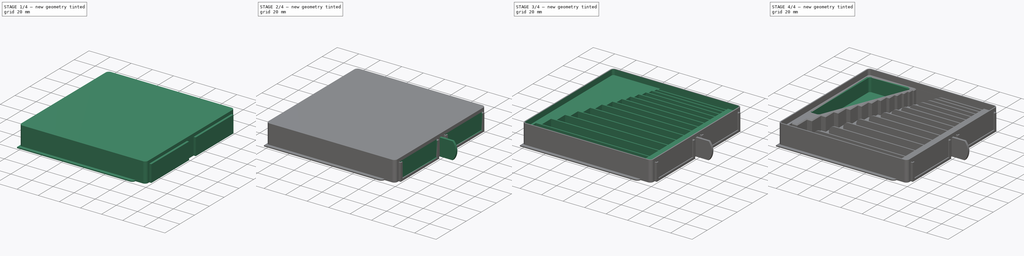
[diagram: build sequence overview — one tinted view per stage of 4, left to right]
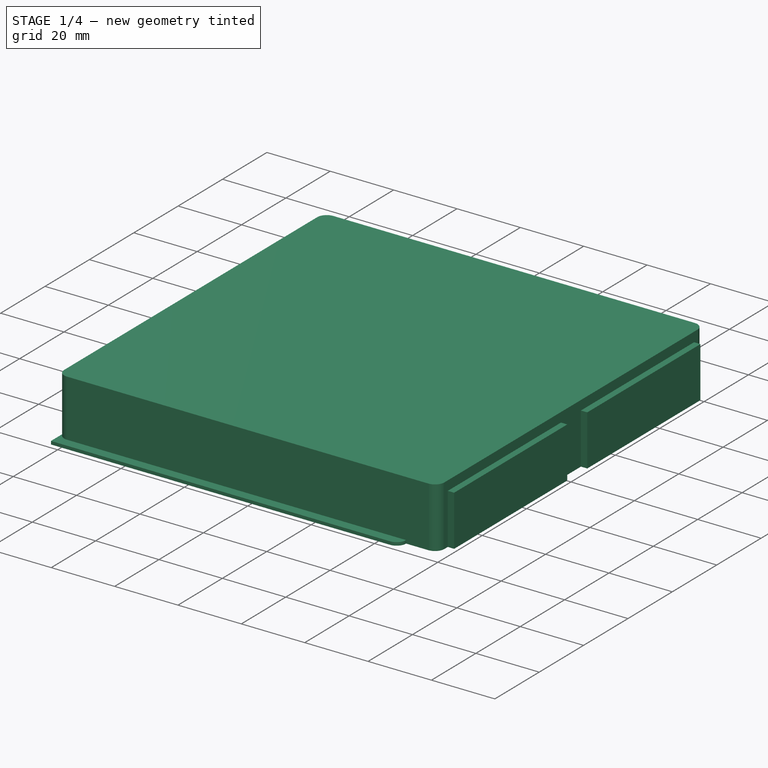
[diagram: stage 1 of 4 — iso view after this stage's code; geometry added in this stage tinted green]
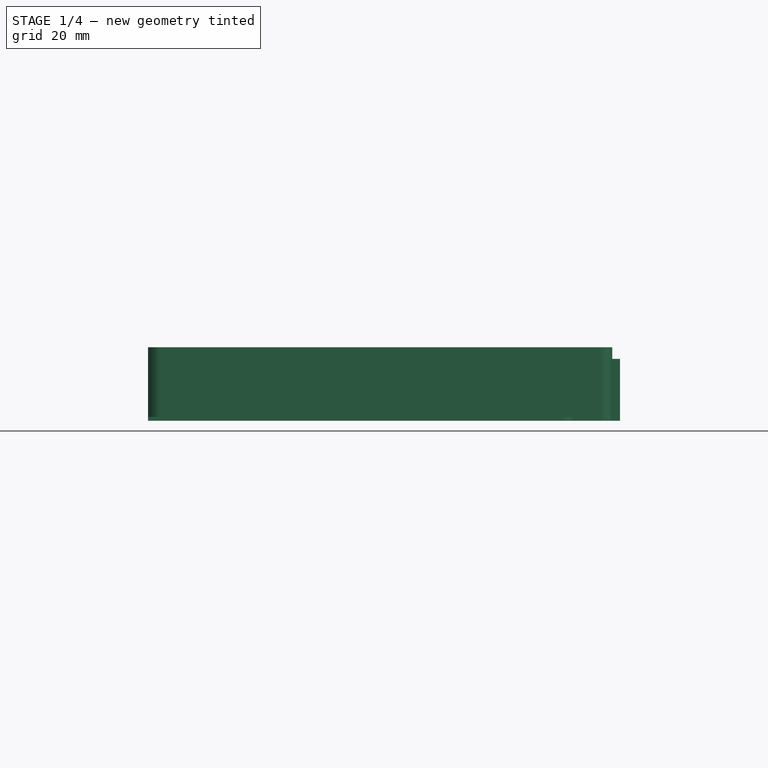
[diagram: stage 1 of 4 — front view after this stage's code; geometry added in this stage tinted green]
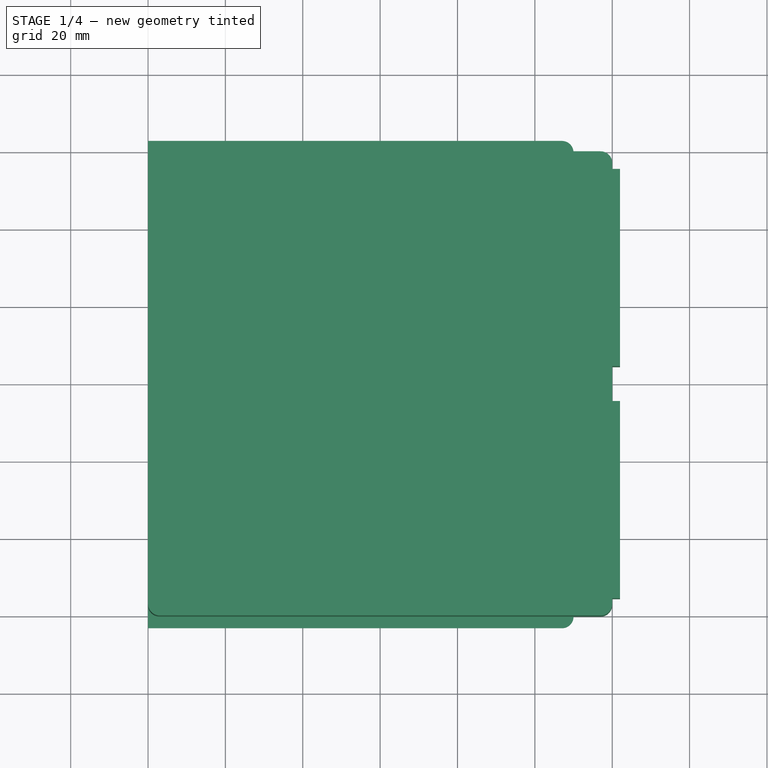
[diagram: stage 1 of 4 — top view after this stage's code; geometry added in this stage tinted green]
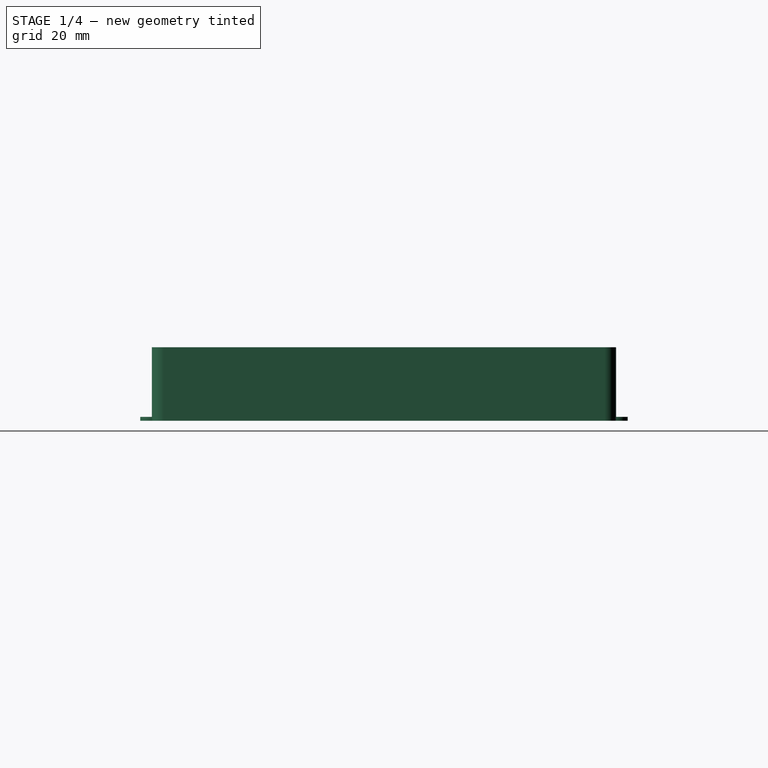
[diagram: stage 1 of 4 — right view after this stage's code; geometry added in this stage tinted green]
FCSTD DOCUMENT  (FreeCAD 0.21R33668 +26 (Git))
Label: _Drill-Drawer
License: CreativeCommons Attribution
LicenseURL: http://creativecommons.org/licenses/by/4.0/
objects: Sketcher::SketchObject×9, PartDesign::Pocket×5, PartDesign::Pad×4, PartDesign::Body×2, Spreadsheet::Sheet×1, PartDesign::Plane×1, PartDesign::FeatureBase×1, PartDesign::Chamfer×1, PartDesign::Fillet×1
note: 35 computed .brp shape members not serialized (recipe doc carries the construction recipe); baked Part::Feature solids carry a one-line shape summary decoded from their .brp

FEATURE [Spreadsheet::Sheet] Spreadsheet  label="DrawerHight"
  cells = A2='please enter the desired height in mm; A3='Hight:; B3(hight)=19; D3(expand)=1.98; A5='Info:; A6='1U = 19mm; A7='2U = 39mm; A8='3U = 59mm; A9='4U = 79mm; A10='5U = 99mm; A11='6U = 119mm
FEATURE [Sketcher::SketchObject] Sketch
  FullyConstrained = false
  MapMode = 5
  Support = -> [XY_Plane]
  sketch-geometry (8):
    g0: LineSegment StartX=-57 StartY=60 StartZ=0 EndX=57 EndY=60 EndZ=0
    g1: LineSegment StartX=60 StartY=57 StartZ=0 EndX=60 EndY=-57 EndZ=0
    g2: LineSegment StartX=57 StartY=-60 StartZ=0 EndX=-57 EndY=-60 EndZ=0
    g3: LineSegment StartX=-60 StartY=-57 StartZ=0 EndX=-60 EndY=57 EndZ=0
    g4: ArcOfCircle CenterX=-57 CenterY=57 CenterZ=0 NormalX=0 NormalY=0 NormalZ=1 AngleXU=0 Radius=3 StartAngle=1.5708 EndAngle=3.14159
    g5: ArcOfCircle CenterX=57 CenterY=57 CenterZ=0 NormalX=0 NormalY=0 NormalZ=1 AngleXU=0 Radius=3 StartAngle=0 EndAngle=1.5708
    g6: ArcOfCircle CenterX=57 CenterY=-57 CenterZ=0 NormalX=0 NormalY=0 NormalZ=1 AngleXU=0 Radius=3 StartAngle=4.71239 EndAngle=6.28319
    g7: ArcOfCircle CenterX=-57 CenterY=-57 CenterZ=0 NormalX=0 NormalY=0 NormalZ=1 AngleXU=0 Radius=3 StartAngle=3.14159 EndAngle=4.71239
  constraints (19):
    c: Horizontal(g0)
    c: Horizontal(g2)
    c: Vertical(g1)
    c: Vertical(g3)
    c: Equal(g0,g3)
    c: Tangent(g3,g4) = 1.5708
    c: Tangent(g0,g4) = 1.5708
    c: Tangent(g0,g5) = 1.5708
    c: Tangent(g1,g5) = 1.5708
    c: Tangent(g1,g6) = 1.5708
    c: Tangent(g2,g6) = 1.5708
    c: Tangent(g2,g7) = 1.5708
    c: Tangent(g3,g7) = 1.5708
    c: Equal(g7,g4)
    c: Equal(g4,g5)
    c: Equal(g5,g6)
    c: Symmetric(g5,g7,g-1)
    c: DistanceX(g3,g1) = 120
    c: Radius(g7) = 3
FEATURE [PartDesign::Pad] Pad
  AllowMultiFace = false
  Direction = (0,0,1)
  Length = 19
  Length2 = 100
  Profile = -> Sketch
  Type = 0
  expr: Length = <<DrawerHight>>.hight
FEATURE [Sketcher::SketchObject] Sketch001
  ExternalGeometry = -> [Sketch]
  FullyConstrained = false
  MapMode = 5
  Support = -> [XY_Plane]
  sketch-geometry (6):
    g0: LineSegment StartX=-60 StartY=63 StartZ=0 EndX=47 EndY=63 EndZ=0
    g1: LineSegment StartX=50 StartY=60 StartZ=0 EndX=50 EndY=-60 EndZ=0
    g2: LineSegment StartX=47 StartY=-63 StartZ=0 EndX=-60 EndY=-63 EndZ=0
    g3: LineSegment StartX=-60 StartY=-63 StartZ=0 EndX=-60 EndY=63 EndZ=0
    g4: ArcOfCircle CenterX=47 CenterY=60 CenterZ=0 NormalX=0 NormalY=0 NormalZ=1 AngleXU=0 Radius=3 StartAngle=-9e-16 EndAngle=1.5708
    g5: ArcOfCircle CenterX=47 CenterY=-60 CenterZ=0 NormalX=0 NormalY=0 NormalZ=1 AngleXU=0 Radius=3 StartAngle=4.71239 EndAngle=6.28319
  constraints (15):
    c: Coincident(g2,g3)
    c: Coincident(g3,g0)
    c: Horizontal(g0)
    c: Horizontal(g2)
    c: Vertical(g1)
    c: Tangent(g0,g4) = 1.5708
    c: Tangent(g1,g4) = 1.5708
    c: Tangent(g2,g5) = 1.5708
    c: Tangent(g1,g5) = 1.5708
    c: Equal(g5,g4)
    c: Symmetric(g2,g0,g-1)
    c: PointOnObject(g-3,g3)
    c: DistanceY(g3,g3) = 126
    c: DistanceX(g0,g1) = 110
    c: Radius(g4) = 3
FEATURE [PartDesign::Pad] Pad001
  AllowMultiFace = false
  BaseFeature = -> Pad
  Direction = (0,0,1)
  Length = 1
  Length2 = 100
  Profile = -> Sketch001
  Type = 0
FEATURE [PartDesign::Plane] DatumPlane
  Length = 141.875
  MapMode = 5
  Placement = pos=(60,0,0) rot=(0.57735,0.57735,0.57735;2.0944rad)
  ResizeMode = 0
  Support = -> [Pad001]
  Width = 65.8745
FEATURE [Sketcher::SketchObject] Sketch002
  FullyConstrained = true
  MapMode = 5
  Placement = pos=(60,0,0) rot=(0.57735,0.57735,0.57735;2.0944rad)
  Support = -> [Pad001]
  sketch-geometry (8):
    g0: LineSegment StartX=-55.5 StartY=16 StartZ=0 EndX=-4.5 EndY=16 EndZ=0
    g1: LineSegment StartX=-4.5 StartY=16 StartZ=0 EndX=-4.5 EndY=0 EndZ=0
    g2: LineSegment StartX=-4.5 StartY=0 StartZ=0 EndX=-55.5 EndY=0 EndZ=0
    g3: LineSegment StartX=-55.5 StartY=0 StartZ=0 EndX=-55.5 EndY=16 EndZ=0
    g4: LineSegment StartX=4.5 StartY=0 StartZ=0 EndX=55.5 EndY=0 EndZ=0
    g5: LineSegment StartX=55.5 StartY=0 StartZ=0 EndX=55.5 EndY=16 EndZ=0
    g6: LineSegment StartX=55.5 StartY=16 StartZ=0 EndX=4.5 EndY=16 EndZ=0
    g7: LineSegment StartX=4.5 StartY=16 StartZ=0 EndX=4.5 EndY=0 EndZ=0
  constraints (23):
    c: Coincident(g0,g1)
    c: Coincident(g1,g2)
    c: Coincident(g2,g3)
    c: Coincident(g3,g0)
    c: Horizontal(g0)
    c: Horizontal(g2)
    c: Vertical(g1)
    c: Vertical(g3)
    c: PointOnObject(g1,g-1)
    c: Coincident(g4,g5)
    c: Coincident(g5,g6)
    c: Coincident(g6,g7)
    c: Coincident(g7,g4)
    c: Horizontal(g4)
    c: Horizontal(g6)
    c: Vertical(g5)
    c: Vertical(g7)
    c: Symmetric(g1,g4,g-2)
    c: DistanceX(g1,g4) = 9
    c: DistanceX(g2,g2) = 51
    c: DistanceY(g3,g3) = 16
    c: Equal(g1,g7)
    c: Equal(g4,g2)
FEATURE [PartDesign::Pad] Pad002
  AllowMultiFace = false
  BaseFeature = -> Pad001
  Direction = (1,0,0)
  Length = 2
  Length2 = 100
  Profile = -> Sketch002
  Type = 0
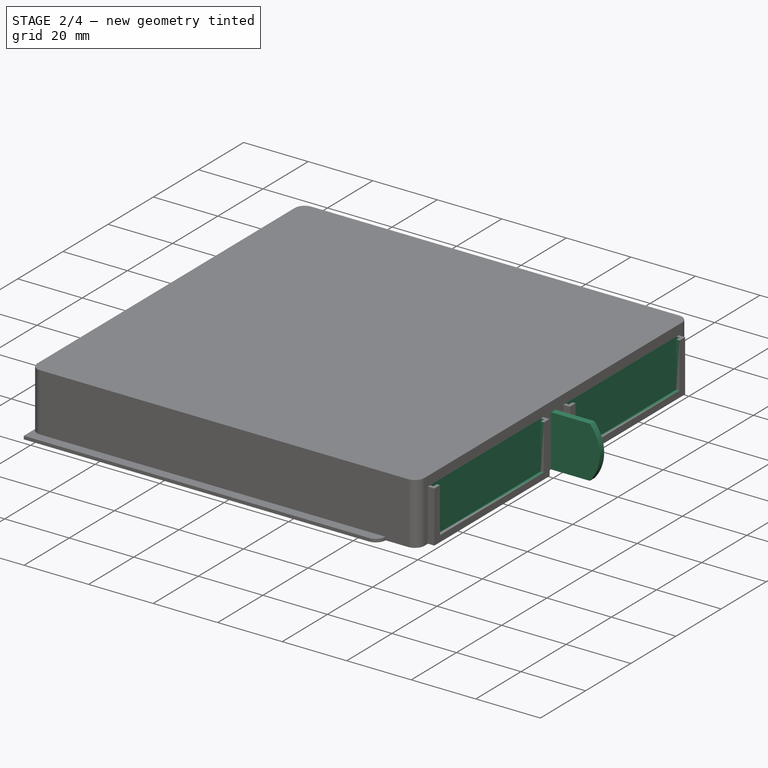
[diagram: stage 2 of 4 — iso view after this stage's code; geometry added in this stage tinted green]
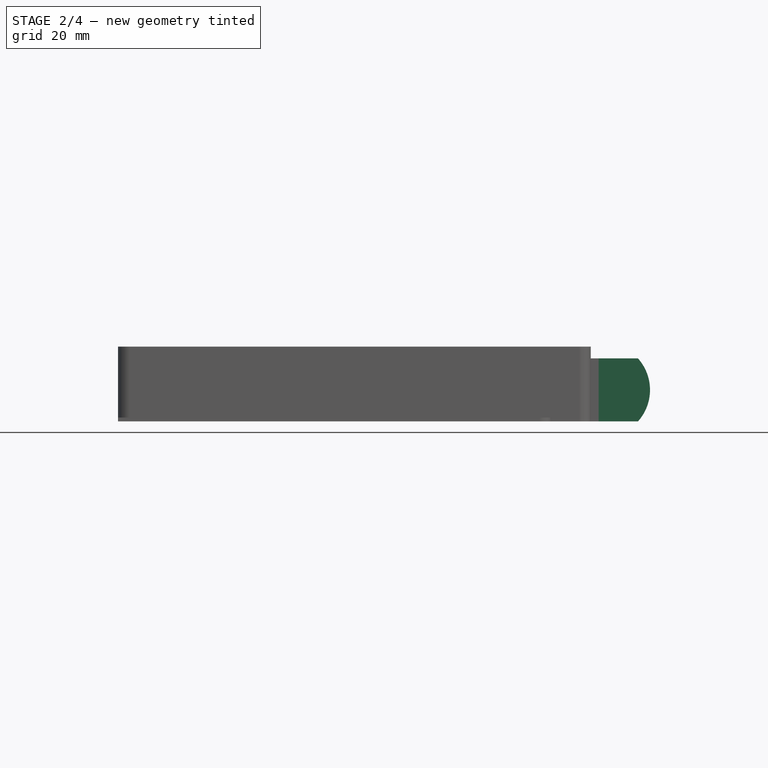
[diagram: stage 2 of 4 — front view after this stage's code; geometry added in this stage tinted green]
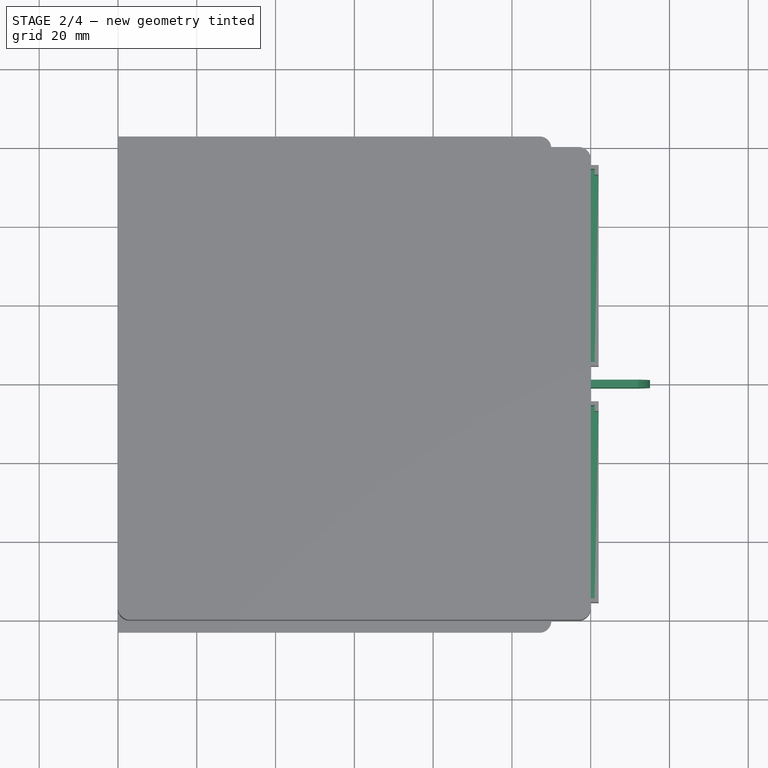
[diagram: stage 2 of 4 — top view after this stage's code; geometry added in this stage tinted green]
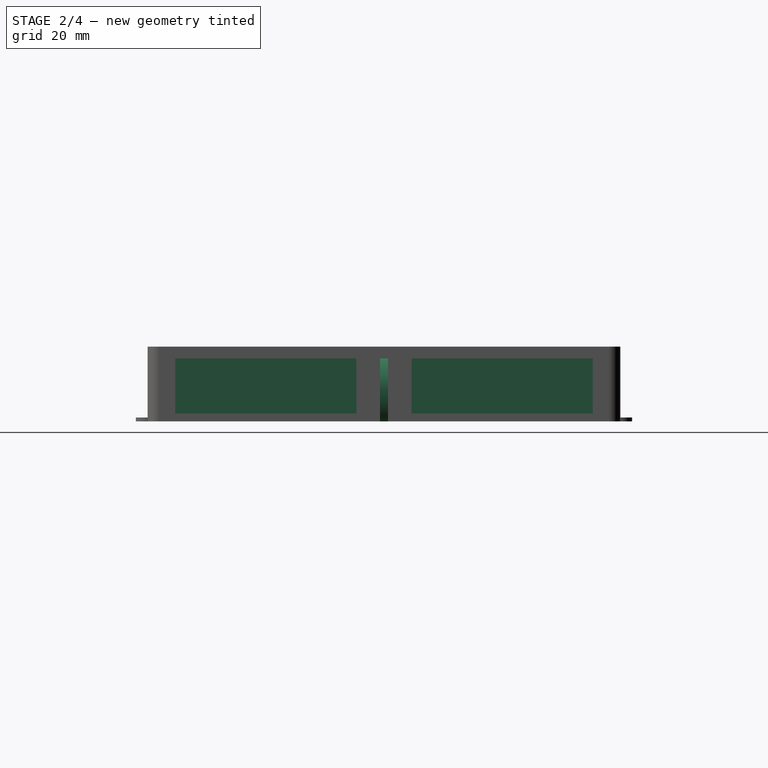
[diagram: stage 2 of 4 — right view after this stage's code; geometry added in this stage tinted green]
FEATURE [Sketcher::SketchObject] Sketch003
  FullyConstrained = true
  MapMode = 5
  Placement = pos=(60,0,0) rot=(0.57735,0.57735,0.57735;2.0944rad)
  Support = -> [DatumPlane]
  sketch-geometry (8):
    g0: LineSegment StartX=-53 StartY=16 StartZ=0 EndX=-7 EndY=16 EndZ=0
    g1: LineSegment StartX=-7 StartY=16 StartZ=0 EndX=-7 EndY=2 EndZ=0
    g2: LineSegment StartX=-7 StartY=2 StartZ=0 EndX=-53 EndY=2 EndZ=0
    g3: LineSegment StartX=-53 StartY=2 StartZ=0 EndX=-53 EndY=16 EndZ=0
    g4: LineSegment StartX=7 StartY=16 StartZ=0 EndX=53 EndY=16 EndZ=0
    g5: LineSegment StartX=53 StartY=16 StartZ=0 EndX=53 EndY=2 EndZ=0
    g6: LineSegment StartX=53 StartY=2 StartZ=0 EndX=7 EndY=2 EndZ=0
    g7: LineSegment StartX=7 StartY=2 StartZ=0 EndX=7 EndY=16 EndZ=0
  constraints (23):
    c: Coincident(g0,g1)
    c: Coincident(g1,g2)
    c: Coincident(g2,g3)
    c: Coincident(g3,g0)
    c: Horizontal(g0)
    c: Horizontal(g2)
    c: Vertical(g1)
    c: Vertical(g3)
    c: Coincident(g4,g5)
    c: Coincident(g5,g6)
    c: Coincident(g6,g7)
    c: Coincident(g7,g4)
    c: Horizontal(g4)
    c: Horizontal(g6)
    c: Vertical(g5)
    c: Vertical(g7)
    c: Equal(g1,g7)
    c: Symmetric(g6,g1,g-2)
    c: Equal(g2,g6)
    c: DistanceY(g-1,g1) = 2
    c: DistanceX(g0,g4) = 14
    c: DistanceY(g3,g3) = 14
    c: DistanceX(g0,g0) = 46
FEATURE [PartDesign::Pocket] Pocket
  AllowMultiFace = false
  BaseFeature = -> Pad002
  Direction = (-1,0,0)
  Length = 3
  Length2 = 100
  Profile = -> Sketch003
  Reversed = true
  Type = 0
FEATURE [Sketcher::SketchObject] Sketch004
  FullyConstrained = true
  MapMode = 5
  Placement = pos=(60,0,0) rot=(0.57735,0.57735,0.57735;2.0944rad)
  Support = -> [DatumPlane]
  sketch-geometry (8):
    g0: LineSegment StartX=-5.5 StartY=16 StartZ=0 EndX=-54.5 EndY=16 EndZ=0
    g1: LineSegment StartX=-54.5 StartY=16 StartZ=0 EndX=-54.5 EndY=1 EndZ=0
    g2: LineSegment StartX=-54.5 StartY=1 StartZ=0 EndX=-5.5 EndY=1 EndZ=0
    g3: LineSegment StartX=-5.5 StartY=1 StartZ=0 EndX=-5.5 EndY=16 EndZ=0
    g4: LineSegment StartX=5.5 StartY=16 StartZ=0 EndX=54.5 EndY=16 EndZ=0
    g5: LineSegment StartX=54.5 StartY=16 StartZ=0 EndX=54.5 EndY=1 EndZ=0
    g6: LineSegment StartX=54.5 StartY=1 StartZ=0 EndX=5.5 EndY=1 EndZ=0
    g7: LineSegment StartX=5.5 StartY=1 StartZ=0 EndX=5.5 EndY=16 EndZ=0
  constraints (23):
    c: Coincident(g0,g1)
    c: Coincident(g1,g2)
    c: Coincident(g2,g3)
    c: Coincident(g3,g0)
    c: Horizontal(g0)
    c: Horizontal(g2)
    c: Vertical(g1)
    c: Vertical(g3)
    c: Coincident(g4,g5)
    c: Coincident(g5,g6)
    c: Coincident(g6,g7)
    c: Coincident(g7,g4)
    c: Horizontal(g4)
    c: Horizontal(g6)
    c: Vertical(g5)
    c: Vertical(g7)
    c: Symmetric(g6,g2,g-2)
    c: DistanceY(g-1,g2) = 1
    c: DistanceY(g1,g1) = 15
    c: DistanceX(g2,g2) = 49
    c: Equal(g2,g6)
    c: Equal(g3,g7)
    c: DistanceX(g0,g4) = 11
FEATURE [PartDesign::Pocket] Pocket001
  AllowMultiFace = false
  BaseFeature = -> Pocket
  Direction = (-1,0,0)
  Length = 1
  Length2 = 100
  Profile = -> Sketch004
  Reversed = true
  Type = 0
FEATURE [Sketcher::SketchObject] Sketch005
  ExternalGeometry = -> [Sketch002]
  FullyConstrained = true
  MapMode = 5
  Placement = pos=(0,0,0) rot=(1,0,0;1.5708rad)
  Support = -> [XZ_Plane]
  sketch-geometry (4):
    g0: ArcOfCircle CenterX=63.0557 CenterY=8 CenterZ=0 NormalX=0 NormalY=0 NormalZ=1 AngleXU=0 Radius=12 StartAngle=5.55346 EndAngle=7.01291
    g1: LineSegment StartX=72 StartY=16 StartZ=0 EndX=60 EndY=16 EndZ=0
    g2: LineSegment StartX=60 StartY=16 StartZ=0 EndX=60 EndY=1.2859e-11 EndZ=0
    g3: LineSegment StartX=60 StartY=1.2859e-11 StartZ=0 EndX=72 EndY=1.2859e-11 EndZ=0
  constraints (11):
    c: Coincident(g0,g1)
    c: Coincident(g1,g-3)
    c: Horizontal(g1)
    c: Coincident(g1,g2)
    c: Coincident(g2,g-3)
    c: Coincident(g2,g3)
    c: Coincident(g3,g0)
    c: Horizontal(g3)
    c: Equal(g1,g3)
    c: DistanceX(g1,g1) = 12
    c: Radius(g0) = 12
FEATURE [PartDesign::Pad] Pad003
  AllowMultiFace = false
  BaseFeature = -> Pocket001
  Direction = (0,-1,-2e-16)
  Length = 2
  Length2 = 100
  Midplane = true
  Profile = -> Sketch005
  Type = 0
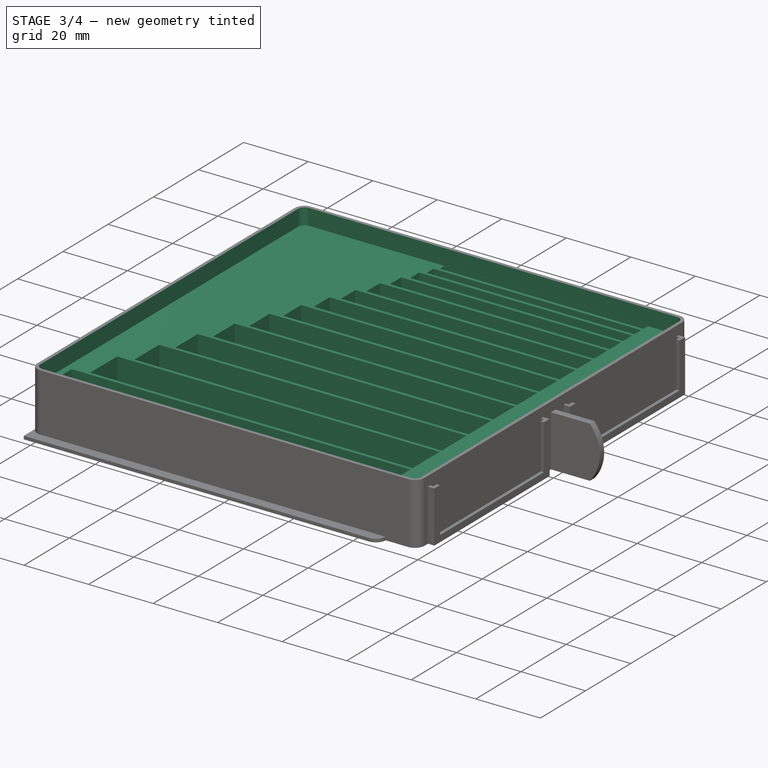
[diagram: stage 3 of 4 — iso view after this stage's code; geometry added in this stage tinted green]
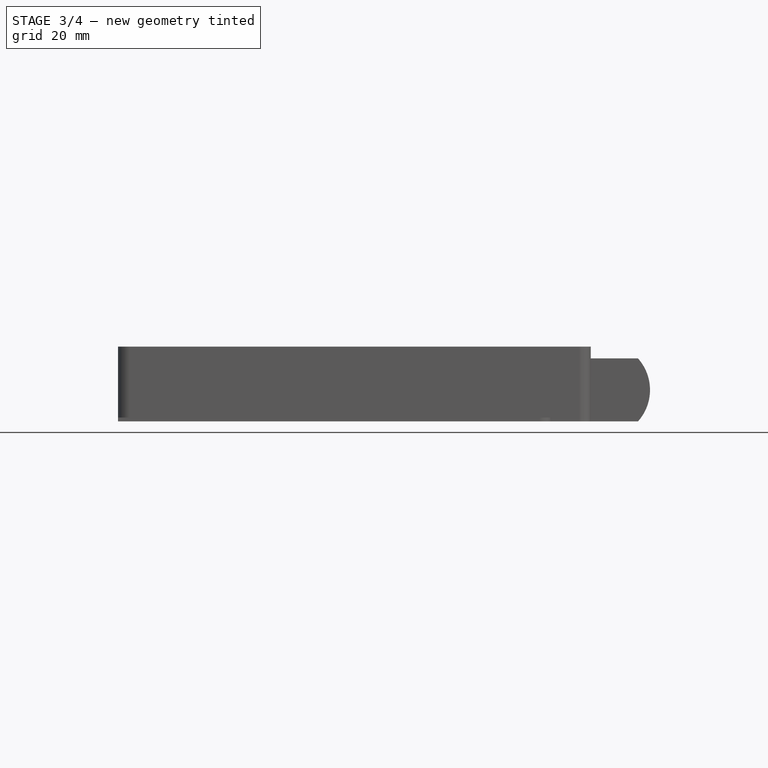
[diagram: stage 3 of 4 — front view after this stage's code; geometry added in this stage tinted green]
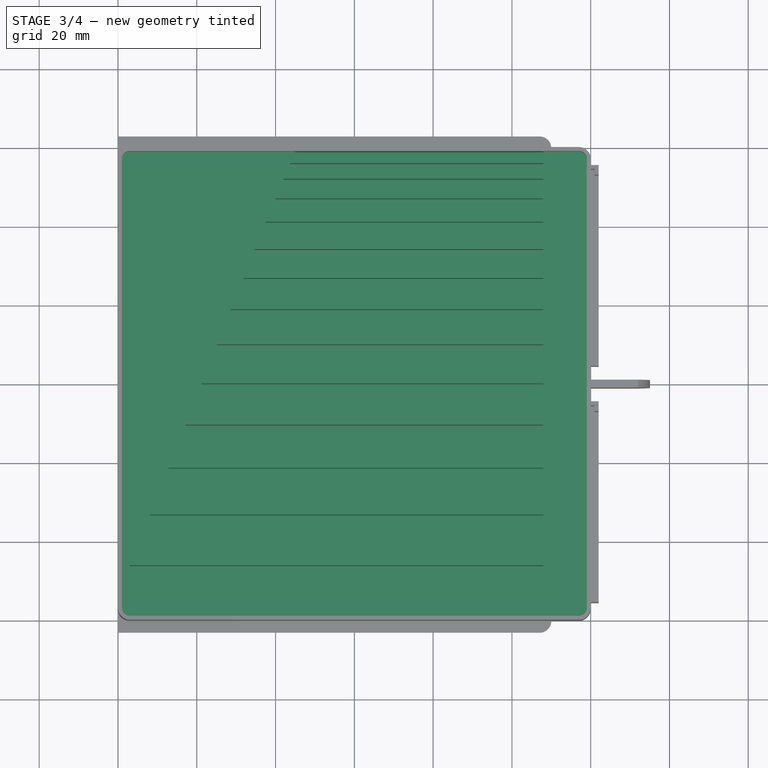
[diagram: stage 3 of 4 — top view after this stage's code; geometry added in this stage tinted green]
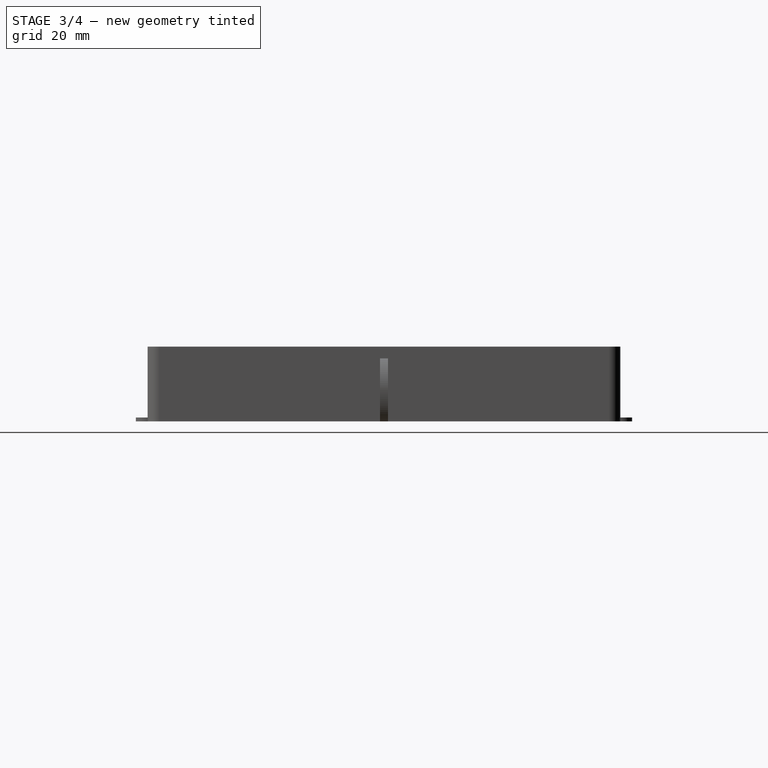
[diagram: stage 3 of 4 — right view after this stage's code; geometry added in this stage tinted green]
FEATURE [PartDesign::Body] Body  label="Main-Body"
  Group = -> [Sketch,Pad,Sketch001,Pad001,DatumPlane,Sketch002,Pad002,Sketch003,Pocket,Sketch004,Pocket001,Sketch005,Pad003]
  Origin = -> Origin
  Tip = -> Pad003
FEATURE [PartDesign::FeatureBase] Clone
  BaseFeature = -> Body
FEATURE [Sketcher::SketchObject] Sketch006
  AttachmentOffset = pos=(0,0,19) rot=(0,0,1;0rad)
  FullyConstrained = true
  MapMode = 5
  Placement = pos=(0,0,19) rot=(0,0,1;0rad)
  Support = -> [XY_Plane001]
  expr: .AttachmentOffset.Base.z = <<DrawerHight>>.hight
  expr: Constraints[135] = <<DrawerHight>>.expand * 5.5
  expr: Constraints[136] = <<DrawerHight>>.expand * 5
  expr: Constraints[137] = <<DrawerHight>>.expand * 4.8
  expr: Constraints[138] = <<DrawerHight>>.expand * 4.5
  expr: Constraints[139] = <<DrawerHight>>.expand * 4
  expr: Constraints[140] = <<DrawerHight>>.expand * 3.5
  expr: Constraints[141] = <<DrawerHight>>.expand * 3.2
  expr: Constraints[142] = <<DrawerHight>>.expand * 3
  expr: Constraints[179] = <<DrawerHight>>.expand * 2.5
  expr: Constraints[180] = <<DrawerHight>>.expand * 2
  expr: Constraints[181] = <<DrawerHight>>.expand * 1.5
  expr: Constraints[227] = <<DrawerHight>>.expand * 1
  expr: Constraints[34] = <<DrawerHight>>.expand * 6.5
  expr: Constraints[38] = <<DrawerHight>>.expand * 6
  sketch-geometry (91):
    g0: LineSegment StartX=-57 StartY=-46.1 StartZ=0 EndX=48 EndY=-46.1 EndZ=0
    g1: LineSegment StartX=48 StartY=-46.1 StartZ=0 EndX=48 EndY=-58.97 EndZ=0
    g2: LineSegment StartX=48 StartY=-58.97 StartZ=0 EndX=-57 EndY=-58.97 EndZ=0
    g3: LineSegment StartX=-57 StartY=-58.97 StartZ=0 EndX=-57 EndY=-46.1 EndZ=0
    g4: LineSegment StartX=-51.917 StartY=-33.22 StartZ=0 EndX=48 EndY=-33.22 EndZ=0
    g5: LineSegment StartX=48 StartY=-33.22 StartZ=0 EndX=48 EndY=-45.1 EndZ=0
    g6: LineSegment StartX=48 StartY=-45.1 StartZ=0 EndX=-51.917 EndY=-45.1 EndZ=0
    g7: LineSegment StartX=-51.917 StartY=-45.1 StartZ=0 EndX=-51.917 EndY=-33.22 EndZ=0
    g8: LineSegment StartX=-60 StartY=-60 StartZ=0 EndX=-60 EndY=60 EndZ=0
    g9: LineSegment StartX=-60 StartY=60 StartZ=0 EndX=60 EndY=60 EndZ=0
    g10: LineSegment StartX=60 StartY=60 StartZ=0 EndX=60 EndY=-60 EndZ=0
    g11: LineSegment StartX=60 StartY=-60 StartZ=0 EndX=-60 EndY=-60 EndZ=0
    g12: GeomPoint X=0 Y=0 Z=0
    g13: GeomPoint X=-51.917 Y=-39.16 Z=0
    g14: GeomPoint X=-57 Y=-52.535 Z=0
    g15: LineSegment StartX=48 StartY=-46.1 StartZ=0 EndX=48 EndY=-45.1 EndZ=0
    g16: LineSegment StartX=48 StartY=-58.97 StartZ=0 EndX=48 EndY=-60 EndZ=0
    g17: LineSegment StartX=48 StartY=-32.22 StartZ=0 EndX=-47.2102 EndY=-32.22 EndZ=0
    g18: LineSegment StartX=-47.2102 StartY=-32.22 StartZ=0 EndX=-47.2102 EndY=-21.33 EndZ=0
    g19: LineSegment StartX=-47.2102 StartY=-21.33 StartZ=0 EndX=48 EndY=-21.33 EndZ=0
    g20: LineSegment StartX=48 StartY=-21.33 StartZ=0 EndX=48 EndY=-32.22 EndZ=0
    g21: LineSegment StartX=48 StartY=-20.33 StartZ=0 EndX=-42.8797 EndY=-20.33 EndZ=0
    g22: LineSegment StartX=-42.8797 StartY=-20.33 StartZ=0 EndX=-42.8797 EndY=-10.43 EndZ=0
    g23: LineSegment StartX=-42.8797 StartY=-10.43 StartZ=0 EndX=48 EndY=-10.43 EndZ=0
    g24: LineSegment StartX=48 StartY=-10.43 StartZ=0 EndX=48 EndY=-20.33 EndZ=0
    g25: LineSegment StartX=48 StartY=-9.43 StartZ=0 EndX=-38.8125 EndY=-9.43 EndZ=0
    g26: LineSegment StartX=-38.8125 StartY=-9.43 StartZ=0 EndX=-38.8125 EndY=0.074 EndZ=0
    g27: LineSegment StartX=-38.8125 StartY=0.074 StartZ=0 EndX=48 EndY=0.074 EndZ=0
    g28: LineSegment StartX=48 StartY=0.074 StartZ=0 EndX=48 EndY=-9.43 EndZ=0
    g29: LineSegment StartX=48 StartY=1.074 StartZ=0 EndX=-34.9334 EndY=1.074 EndZ=0
    g30: LineSegment StartX=-34.9334 StartY=1.074 StartZ=0 EndX=-34.9334 EndY=9.984 EndZ=0
    g31: LineSegment StartX=-34.9334 StartY=9.984 StartZ=0 EndX=48 EndY=9.984 EndZ=0
    g32: LineSegment StartX=48 StartY=9.984 StartZ=0 EndX=48 EndY=1.074 EndZ=0
    g33: LineSegment StartX=48 StartY=10.984 StartZ=0 EndX=-31.3554 EndY=10.984 EndZ=0
    g34: LineSegment StartX=-31.3554 StartY=10.984 StartZ=0 EndX=-31.3554 EndY=18.904 EndZ=0
    g35: LineSegment StartX=-31.3554 StartY=18.904 StartZ=0 EndX=48 EndY=18.904 EndZ=0
    g36: LineSegment StartX=48 StartY=18.904 StartZ=0 EndX=48 EndY=10.984 EndZ=0
    g37: LineSegment StartX=48 StartY=19.904 StartZ=0 EndX=-28.1535 EndY=19.904 EndZ=0
    g38: LineSegment StartX=-28.1535 StartY=19.904 StartZ=0 EndX=-28.1535 EndY=26.834 EndZ=0
    g39: LineSegment StartX=-28.1535 StartY=26.834 StartZ=0 EndX=48 EndY=26.834 EndZ=0
    g40: LineSegment StartX=48 StartY=26.834 StartZ=0 EndX=48 EndY=19.904 EndZ=0
    g41: LineSegment StartX=48 StartY=27.834 StartZ=0 EndX=-25.2527 EndY=27.834 EndZ=0
    g42: LineSegment StartX=-25.2527 StartY=27.834 StartZ=0 EndX=-25.2527 EndY=34.17 EndZ=0
    g43: LineSegment StartX=-25.2527 StartY=34.17 StartZ=0 EndX=48 EndY=34.17 EndZ=0
    g44: LineSegment StartX=48 StartY=34.17 StartZ=0 EndX=48 EndY=27.834 EndZ=0
    g45: LineSegment StartX=48 StartY=35.17 StartZ=0 EndX=-22.54 EndY=35.17 EndZ=0
    g46: LineSegment StartX=-22.54 StartY=35.17 StartZ=0 EndX=-22.54 EndY=41.11 EndZ=0
    g47: LineSegment StartX=-22.54 StartY=41.11 StartZ=0 EndX=48 EndY=41.11 EndZ=0
    g48: LineSegment StartX=48 StartY=41.11 StartZ=0 EndX=48 EndY=35.17 EndZ=0
    g49: LineSegment StartX=48 StartY=-33.22 StartZ=0 EndX=48 EndY=-32.22 EndZ=0
    g50: LineSegment StartX=48 StartY=-21.33 StartZ=0 EndX=48 EndY=-20.33 EndZ=0
    g51: LineSegment StartX=48 StartY=-10.43 StartZ=0 EndX=48 EndY=-9.43 EndZ=0
    g52: LineSegment StartX=48 StartY=0.074 StartZ=0 EndX=48 EndY=1.074 EndZ=0
    g53: LineSegment StartX=48 StartY=9.984 StartZ=0 EndX=48 EndY=10.984 EndZ=0
    g54: LineSegment StartX=48 StartY=18.904 StartZ=0 EndX=48 EndY=19.904 EndZ=0
    g55: LineSegment StartX=48 StartY=26.834 StartZ=0 EndX=48 EndY=27.834 EndZ=0
    g56: LineSegment StartX=48 StartY=34.17 StartZ=0 EndX=48 EndY=35.17 EndZ=0
    g57: LineSegment StartX=48 StartY=42.11 StartZ=0 EndX=-20.0906 EndY=42.11 EndZ=0
    g58: LineSegment StartX=-20.0906 StartY=42.11 StartZ=0 EndX=-20.0906 EndY=47.06 EndZ=0
    g59: LineSegment StartX=-20.0906 StartY=47.06 StartZ=0 EndX=48 EndY=47.06 EndZ=0
    g60: LineSegment StartX=48 StartY=47.06 StartZ=0 EndX=48 EndY=42.11 EndZ=0
    g61: LineSegment StartX=48 StartY=48.06 StartZ=0 EndX=-18.0175 EndY=48.06 EndZ=0
    g62: LineSegment StartX=-18.0175 StartY=48.06 StartZ=0 EndX=-18.0175 EndY=52.02 EndZ=0
    g63: LineSegment StartX=-18.0175 StartY=52.02 StartZ=0 EndX=48 EndY=52.02 EndZ=0
    g64: LineSegment StartX=48 StartY=52.02 StartZ=0 EndX=48 EndY=48.06 EndZ=0
    g65: LineSegment StartX=48 StartY=53.02 StartZ=0 EndX=-16.3206 EndY=53.02 EndZ=0
    g66: LineSegment StartX=-16.3206 StartY=53.02 StartZ=0 EndX=-16.3206 EndY=55.99 EndZ=0
    g67: LineSegment StartX=-16.3206 StartY=55.99 StartZ=0 EndX=48 EndY=55.99 EndZ=0
    g68: LineSegment StartX=48 StartY=55.99 StartZ=0 EndX=48 EndY=53.02 EndZ=0
    g69: LineSegment StartX=48 StartY=41.11 StartZ=0 EndX=48 EndY=42.11 EndZ=0
    g70: LineSegment StartX=48 StartY=47.06 StartZ=0 EndX=48 EndY=48.06 EndZ=0
    g71: LineSegment StartX=48 StartY=52.02 StartZ=0 EndX=48 EndY=53.02 EndZ=0
    g72: GeomPoint X=-47.2102 Y=-26.775 Z=0
    g73: GeomPoint X=-42.8797 Y=-15.38 Z=0
    g74: GeomPoint X=-38.8125 Y=-4.678 Z=0
    g75: GeomPoint X=-34.9334 Y=5.529 Z=0
    g76: GeomPoint X=-31.3554 Y=14.944 Z=0
    g77: GeomPoint X=-28.1535 Y=23.369 Z=0
    g78: GeomPoint X=-25.2527 Y=31.002 Z=0
    g79: GeomPoint X=-22.54 Y=38.14 Z=0
    g80: GeomPoint X=-20.0906 Y=44.585 Z=0
    g81: GeomPoint X=-18.0175 Y=50.04 Z=0
    g82: LineSegment StartX=-15 StartY=57.98 StartZ=0 EndX=-57 EndY=-52.535 EndZ=0
    g83: LineSegment StartX=48 StartY=55.99 StartZ=0 EndX=48 EndY=56.99 EndZ=0
    g84: LineSegment StartX=-15 StartY=58.97 StartZ=0 EndX=48 EndY=58.97 EndZ=0
    g85: LineSegment StartX=48 StartY=58.97 StartZ=0 EndX=48 EndY=56.99 EndZ=0
    g86: LineSegment StartX=48 StartY=56.99 StartZ=0 EndX=-15 EndY=56.99 EndZ=0
    g87: LineSegment StartX=-15 StartY=56.99 StartZ=0 EndX=-15 EndY=58.97 EndZ=0
    g88: LineSegment StartX=48 StartY=58.97 StartZ=0 EndX=48 EndY=60 EndZ=0
    g89: GeomPoint X=-15 Y=57.98 Z=0
    g90: GeomPoint X=-16.3206 Y=54.505 Z=0
  constraints (231):
    c: Coincident(g0,g1)
    c: Coincident(g1,g2)
    c: Coincident(g2,g3)
    c: Coincident(g3,g0)
    c: Horizontal(g0)
    c: Horizontal(g2)
    c: Vertical(g1)
    c: Vertical(g3)
    c: Coincident(g4,g5)
    c: Coincident(g5,g6)
    c: Coincident(g6,g7)
    c: Coincident(g7,g4)
    c: Horizontal(g4)
    c: Horizontal(g6)
    c: Vertical(g5)
    c: Vertical(g7)
    c: Coincident(g8,g9)
    c: Coincident(g9,g10)
    c: Coincident(g10,g11)
    c: Coincident(g11,g8)
    c: Horizontal(g9)
    c: Horizontal(g11)
    c: Vertical(g8)
    c: Vertical(g10)
    c: Symmetric(g9,g8,g12)
    c: Coincident(g12,g-1)
    c: Equal(g9,g8)
    c: DistanceX(g9,g9) = 120
    c: Symmetric(g4,g6,g13)
    c: Symmetric(g2,g0,g14)
    c: Coincident(g15,g0)
    c: Coincident(g15,g5)
    c: Vertical(g15)
    c: DistanceY(g15,g15) = 1
    c: DistanceY(g3,g3) = 12.87
    c: Coincident(g16,g1)
    c: PointOnObject(g16,g11)
    c: Vertical(g16)
    c: DistanceY(g7,g7) = 11.88
    c: Coincident(g17,g18)
    c: Coincident(g18,g19)
    c: Coincident(g19,g20)
    c: Coincident(g20,g17)
    c: Horizontal(g17)
    c: Horizontal(g19)
    c: Vertical(g18)
    c: Vertical(g20)
    c: Coincident(g21,g22)
    c: Coincident(g22,g23)
    c: Coincident(g23,g24)
    c: Coincident(g24,g21)
    c: Horizontal(g21)
    c: Horizontal(g23)
    c: Vertical(g22)
    c: Vertical(g24)
    c: Coincident(g25,g26)
    c: Coincident(g26,g27)
    c: Coincident(g27,g28)
    c: Coincident(g28,g25)
    c: Horizontal(g25)
    c: Horizontal(g27)
    c: Vertical(g26)
    c: Vertical(g28)
    c: Coincident(g29,g30)
    c: Coincident(g30,g31)
    c: Coincident(g31,g32)
    c: Coincident(g32,g29)
    c: Horizontal(g29)
    c: Horizontal(g31)
    c: Vertical(g30)
    c: Vertical(g32)
    c: Coincident(g33,g34)
    c: Coincident(g34,g35)
    c: Coincident(g35,g36)
    c: Coincident(g36,g33)
    c: Horizontal(g33)
    c: Horizontal(g35)
    c: Vertical(g34)
    c: Vertical(g36)
    c: Coincident(g37,g38)
    c: Coincident(g38,g39)
    c: Coincident(g39,g40)
    c: Coincident(g40,g37)
    c: Horizontal(g37)
    c: Horizontal(g39)
    c: Vertical(g38)
    c: Vertical(g40)
    c: Coincident(g41,g42)
    c: Coincident(g42,g43)
    c: Coincident(g43,g44)
    c: Coincident(g44,g41)
    c: Horizontal(g41)
    c: Horizontal(g43)
    c: Vertical(g42)
    c: Vertical(g44)
    c: Coincident(g45,g46)
    c: Coincident(g46,g47)
    c: Coincident(g47,g48)
    c: Coincident(g48,g45)
    c: Horizontal(g45)
    c: Horizontal(g47)
    c: Vertical(g46)
    c: Vertical(g48)
    c: Coincident(g49,g4)
    c: Coincident(g49,g17)
    c: Coincident(g50,g19)
    c: Coincident(g50,g21)
    c: Coincident(g51,g23)
    c: Coincident(g51,g25)
    c: Coincident(g52,g27)
    c: Coincident(g52,g29)
    c: Coincident(g53,g31)
    c: Coincident(g53,g33)
    c: Coincident(g54,g35)
    c: Coincident(g54,g37)
    c: Coincident(g55,g39)
    c: Coincident(g55,g41)
    c: Coincident(g56,g43)
    c: Coincident(g56,g45)
    c: Vertical(g56)
    c: Vertical(g55)
    c: Vertical(g54)
    c: Vertical(g53)
    c: Vertical(g52)
    c: Vertical(g51)
    c: Vertical(g50)
    c: Vertical(g49)
    c: Equal(g15,g49)
    c: Equal(g49,g50)
    c: Equal(g50,g51)
    c: Equal(g51,g52)
    c: Equal(g52,g53)
    c: Equal(g53,g54)
    c: Equal(g54,g55)
    c: Equal(g55,g56)
    c: DistanceY(g18,g18) = 10.89
    c: DistanceY(g22,g22) = 9.9
    c: DistanceY(g26,g26) = 9.504
    c: DistanceY(g30,g30) = 8.91
    c: DistanceY(g34,g34) = 7.92
    c: DistanceY(g38,g38) = 6.93
    c: DistanceY(g42,g42) = 6.336
    c: DistanceY(g46,g46) = 5.94
    c: Coincident(g57,g58)
    c: Coincident(g58,g59)
    c: Coincident(g59,g60)
    c: Coincident(g60,g57)
    c: Horizontal(g57)
    c: Horizontal(g59)
    c: Vertical(g58)
    c: Vertical(g60)
    c: Coincident(g61,g62)
    c: Coincident(g62,g63)
    c: Coincident(g63,g64)
    c: Coincident(g64,g61)
    c: Horizontal(g61)
    c: Horizontal(g63)
    c: Vertical(g62)
    c: Vertical(g64)
    c: Coincident(g65,g66)
    c: Coincident(g66,g67)
    c: Coincident(g67,g68)
    c: Coincident(g68,g65)
    c: Horizontal(g65)
    c: Horizontal(g67)
    c: Vertical(g66)
    c: Vertical(g68)
    c: Coincident(g69,g47)
    c: Coincident(g69,g57)
    c: Coincident(g70,g59)
    c: Coincident(g70,g61)
    c: Coincident(g71,g63)
    c: Coincident(g71,g65)
    c: Vertical(g71)
    c: Vertical(g70)
    c: Vertical(g69)
    c: Equal(g56,g69)
    c: Equal(g69,g70)
    c: Equal(g70,g71)
    c: DistanceY(g58,g58) = 4.95
    c: DistanceY(g62,g62) = 3.96
    c: DistanceY(g66,g66) = 2.97
    c: Symmetric(g17,g18,g72)
    c: Symmetric(g21,g22,g73)
    c: Symmetric(g25,g26,g74)
    c: Symmetric(g29,g30,g75)
    c: Symmetric(g33,g34,g76)
    c: Symmetric(g61,g62,g81)
    c: Symmetric(g57,g58,g80)
    c: Symmetric(g45,g46,g79)
    c: Symmetric(g41,g42,g78)
    c: Symmetric(g37,g38,g77)
    c: Coincident(g82,g14)
    c: DistanceX(g16,g10) = 12
    c: DistanceX(g8,g2) = 3
    c: PointOnObject(g80,g82)
    c: PointOnObject(g81,g82)
    c: PointOnObject(g79,g82)
    c: PointOnObject(g78,g82)
    c: PointOnObject(g77,g82)
    c: PointOnObject(g76,g82)
    c: PointOnObject(g75,g82)
    c: PointOnObject(g74,g82)
    c: PointOnObject(g73,g82)
    c: PointOnObject(g72,g82)
    c: PointOnObject(g13,g82)
    c: DistanceY(g67,g9) = 4.01
    c: Coincident(g83,g67)
    c: Vertical(g83)
    c: Coincident(g84,g85)
    c: Coincident(g85,g86)
    c: Coincident(g86,g87)
    c: Coincident(g87,g84)
    c: Horizontal(g84)
    c: Horizontal(g86)
    c: Vertical(g85)
    c: Vertical(g87)
    c: Coincident(g85,g83)
    c: Coincident(g88,g84)
    c: PointOnObject(g88,g9)
    c: Vertical(g88)
    c: Equal(g88,g16)
    c: Symmetric(g84,g86,g89)
    c: Coincident(g82,g89)
    c: Symmetric(g65,g66,g90)
    c: PointOnObject(g90,g82)
    c: Equal(g71,g83)
    c: DistanceY(g87,g87) = 1.98
    c: DistanceY(g88,g88) = 1.03
    c: DistanceX(g82,g88) = 63
    c: DistanceX(g27,g27) = 86.8125
FEATURE [Sketcher::SketchObject] Sketch007
  AttachmentOffset = pos=(0,0,19) rot=(0,0,1;0rad)
  FullyConstrained = true
  MapMode = 5
  Placement = pos=(0,0,19) rot=(0,0,1;0rad)
  Support = -> [XY_Plane001]
  expr: .AttachmentOffset.Base.z = <<DrawerHight>>.hight
  sketch-geometry (9):
    g0: LineSegment StartX=59 StartY=-57 StartZ=0 EndX=59 EndY=57 EndZ=0
    g1: LineSegment StartX=57 StartY=59 StartZ=0 EndX=-57 EndY=59 EndZ=0
    g2: LineSegment StartX=-59 StartY=57 StartZ=0 EndX=-59 EndY=-57 EndZ=0
    g3: LineSegment StartX=-57 StartY=-59 StartZ=0 EndX=57 EndY=-59 EndZ=0
    g4: GeomPoint X=0 Y=0 Z=0
    g5: ArcOfCircle CenterX=-57 CenterY=57 CenterZ=0 NormalX=0 NormalY=0 NormalZ=1 AngleXU=0 Radius=2 StartAngle=1.5708 EndAngle=3.14159
    g6: ArcOfCircle CenterX=57 CenterY=57 CenterZ=0 NormalX=0 NormalY=0 NormalZ=1 AngleXU=0 Radius=2 StartAngle=3e-16 EndAngle=1.5708
    g7: ArcOfCircle CenterX=57 CenterY=-57 CenterZ=0 NormalX=0 NormalY=0 NormalZ=1 AngleXU=0 Radius=2 StartAngle=4.71239 EndAngle=6.28319
    g8: ArcOfCircle CenterX=-57 CenterY=-57 CenterZ=0 NormalX=0 NormalY=0 NormalZ=1 AngleXU=0 Radius=2 StartAngle=3.14159 EndAngle=4.71239
  constraints (20):
    c: Horizontal(g1)
    c: Horizontal(g3)
    c: Vertical(g0)
    c: Vertical(g2)
    c: Coincident(g4,g-1)
    c: Tangent(g1,g5) = -1.5708
    c: Tangent(g2,g5) = -1.5708
    c: Tangent(g0,g6) = -1.5708
    c: Tangent(g1,g6) = -1.5708
    c: Tangent(g0,g7) = -1.5708
    c: Tangent(g3,g7) = -1.5708
    c: Tangent(g2,g8) = -1.5708
    c: Tangent(g3,g8) = -1.5708
    c: Equal(g5,g6)
    c: Equal(g6,g7)
    c: Equal(g7,g8)
    c: Radius(g6) = 2
    c: Equal(g1,g2)
    c: DistanceX(g2,g0) = 118
    c: Symmetric(g6,g8,g4)
FEATURE [PartDesign::Pocket] Pocket003
  BaseFeature = -> Clone
  Direction = (0,0,-1)
  Length = 5
  Length2 = 5
  Profile = -> Sketch007
  ReferenceAxis = -> Sketch007 [N_Axis]
  Type = 0
FEATURE [PartDesign::Pocket] Pocket002
  BaseFeature = -> Pocket003
  Direction = (0,0,-1)
  Length = 18
  Length2 = 5
  Profile = -> Sketch006
  ReferenceAxis = -> Sketch006 [N_Axis]
  Type = 0
  expr: Length = <<DrawerHight>>.hight - 1
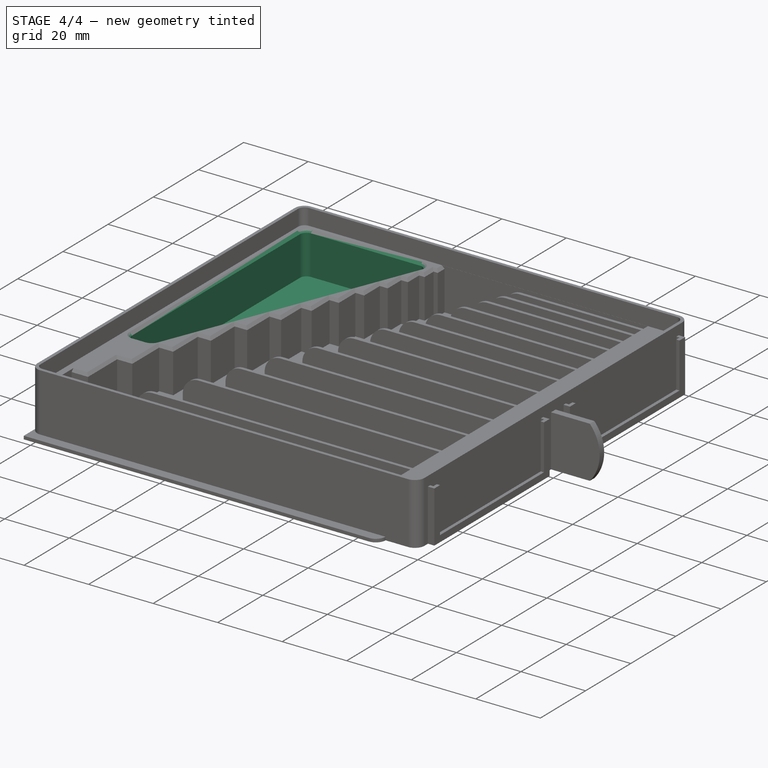
[diagram: stage 4 of 4 — iso view after this stage's code; geometry added in this stage tinted green]
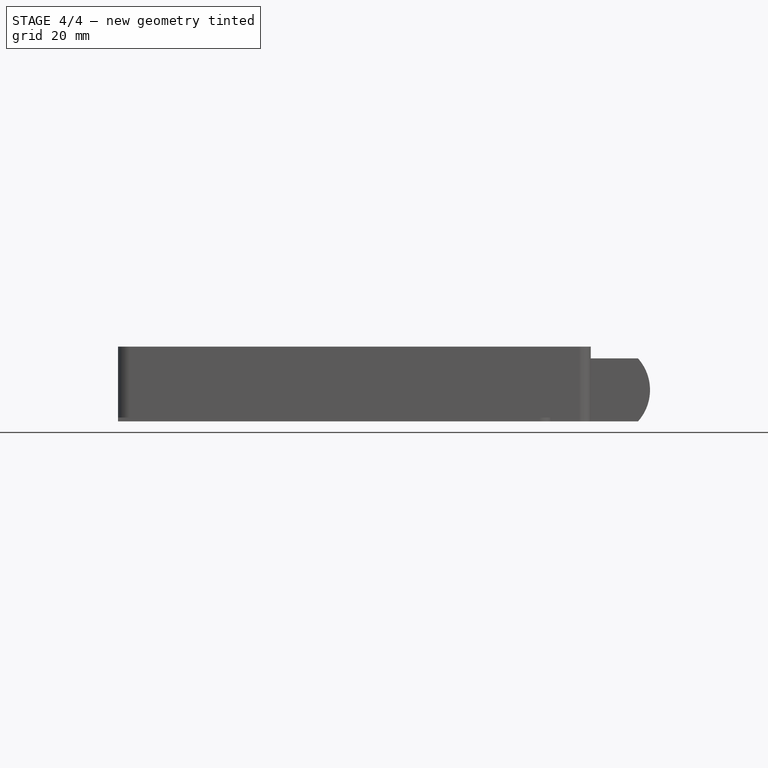
[diagram: stage 4 of 4 — front view after this stage's code; geometry added in this stage tinted green]
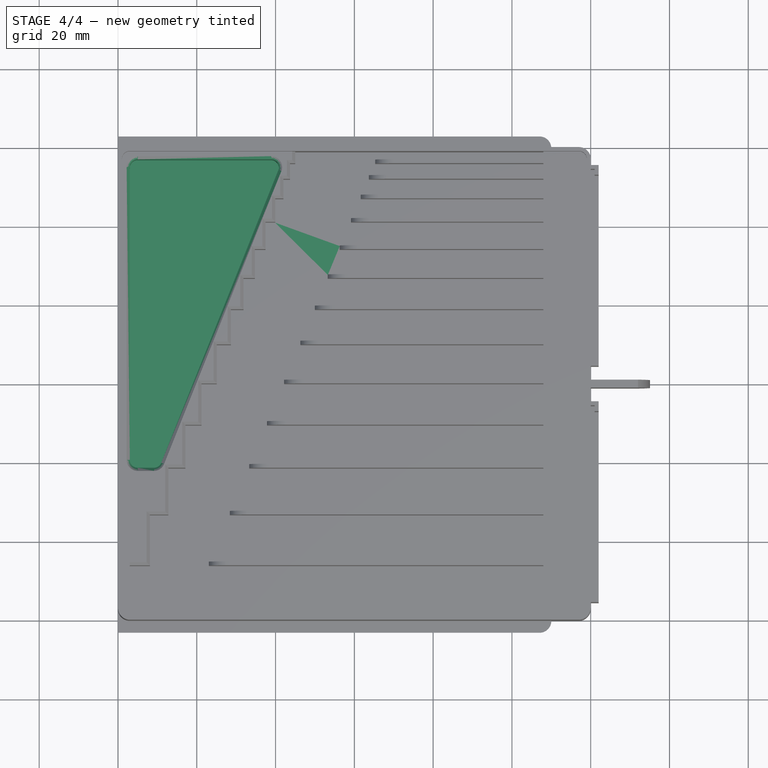
[diagram: stage 4 of 4 — top view after this stage's code; geometry added in this stage tinted green]
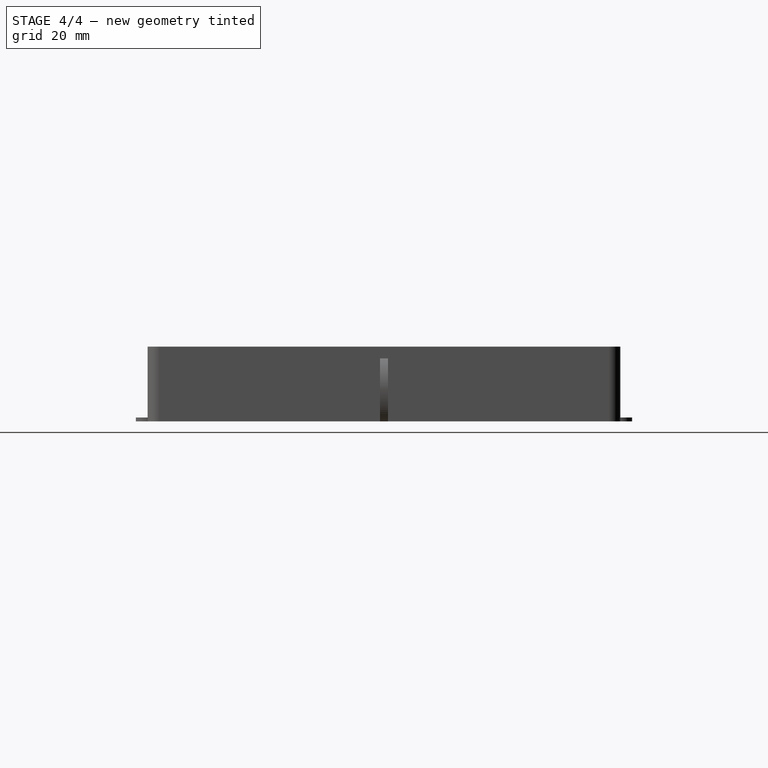
[diagram: stage 4 of 4 — right view after this stage's code; geometry added in this stage tinted green]
FEATURE [Sketcher::SketchObject] Sketch008
  AttachmentOffset = pos=(0,0,19) rot=(0,0,1;0rad)
  ExternalGeometry = -> [Sketch006]
  FullyConstrained = true
  MapMode = 5
  Placement = pos=(0,0,19) rot=(0,0,1;0rad)
  Support = -> [XY_Plane001]
  expr: .AttachmentOffset.Base.z = <<DrawerHight>>.hight
  sketch-geometry (68):
    g0: LineSegment StartX=-16.3206 StartY=53.02 StartZ=0 EndX=3.67936 EndY=53.02 EndZ=0
    g1: LineSegment StartX=3.67936 StartY=53.02 StartZ=0 EndX=3.67936 EndY=52.02 EndZ=0
    g2: LineSegment StartX=3.67936 StartY=52.02 StartZ=0 EndX=-16.3206 EndY=52.02 EndZ=0
    g3: LineSegment StartX=-16.3206 StartY=52.02 StartZ=0 EndX=-16.3206 EndY=53.02 EndZ=0
    g4: LineSegment StartX=-18.0175 StartY=48.06 StartZ=0 EndX=1.62721 EndY=48.06 EndZ=0
    g5: LineSegment StartX=1.62721 StartY=48.06 StartZ=0 EndX=1.62721 EndY=47.06 EndZ=0
    g6: LineSegment StartX=1.62721 StartY=47.06 StartZ=0 EndX=-18.0175 EndY=47.06 EndZ=0
    g7: LineSegment StartX=-18.0175 StartY=47.06 StartZ=0 EndX=-18.0175 EndY=48.06 EndZ=0
    g8: LineSegment StartX=-20.0906 StartY=42.11 StartZ=0 EndX=-0.834558 EndY=42.11 EndZ=0
    g9: LineSegment StartX=-0.834558 StartY=42.11 StartZ=0 EndX=-0.834558 EndY=41.11 EndZ=0
    g10: LineSegment StartX=-0.834558 StartY=41.11 StartZ=0 EndX=-20.0906 EndY=41.11 EndZ=0
    g11: LineSegment StartX=-20.0906 StartY=41.11 StartZ=0 EndX=-20.0906 EndY=42.11 EndZ=0
    g12: LineSegment StartX=-22.54 StartY=35.17 StartZ=0 EndX=-3.70593 EndY=35.17 EndZ=0
    g13: LineSegment StartX=-3.70593 StartY=35.17 StartZ=0 EndX=-3.70593 EndY=34.17 EndZ=0
    g14: LineSegment StartX=-3.70593 StartY=34.17 StartZ=0 EndX=-22.54 EndY=34.17 EndZ=0
    g15: LineSegment StartX=-22.54 StartY=34.17 StartZ=0 EndX=-22.54 EndY=35.17 EndZ=0
    g16: LineSegment StartX=-25.2527 StartY=27.834 StartZ=0 EndX=-6.74114 EndY=27.834 EndZ=0
    g17: LineSegment StartX=-6.74114 StartY=27.834 StartZ=0 EndX=-6.74114 EndY=26.834 EndZ=0
    g18: LineSegment StartX=-6.74114 StartY=26.834 StartZ=0 EndX=-25.2527 EndY=26.834 EndZ=0
    g19: LineSegment StartX=-25.2527 StartY=26.834 StartZ=0 EndX=-25.2527 EndY=27.834 EndZ=0
    g20: LineSegment StartX=-28.1535 StartY=19.904 StartZ=0 EndX=-10.0221 EndY=19.904 EndZ=0
    g21: LineSegment StartX=-10.0221 StartY=19.904 StartZ=0 EndX=-10.0221 EndY=18.904 EndZ=0
    g22: LineSegment StartX=-10.0221 StartY=18.904 StartZ=0 EndX=-28.1535 EndY=18.904 EndZ=0
    g23: LineSegment StartX=-28.1535 StartY=18.904 StartZ=0 EndX=-28.1535 EndY=19.904 EndZ=0
    g24: LineSegment StartX=-31.3554 StartY=10.984 StartZ=0 EndX=-13.7127 EndY=10.984 EndZ=0
    g25: LineSegment StartX=-13.7127 StartY=10.984 StartZ=0 EndX=-13.7127 EndY=9.984 EndZ=0
    g26: LineSegment StartX=-13.7127 StartY=9.984 StartZ=0 EndX=-31.3554 EndY=9.984 EndZ=0
    g27: LineSegment StartX=-31.3554 StartY=9.984 StartZ=0 EndX=-31.3554 EndY=10.984 EndZ=0
    g28: LineSegment StartX=-34.9334 StartY=1.074 StartZ=0 EndX=-17.8129 EndY=1.074 EndZ=0
    g29: LineSegment StartX=-17.8129 StartY=1.074 StartZ=0 EndX=-17.8129 EndY=0.074 EndZ=0
    g30: LineSegment StartX=-17.8129 StartY=0.074 StartZ=0 EndX=-34.9334 EndY=0.074 EndZ=0
    g31: LineSegment StartX=-34.9334 StartY=0.074 StartZ=0 EndX=-34.9334 EndY=1.074 EndZ=0
    g32: LineSegment StartX=-38.8125 StartY=-9.43 StartZ=0 EndX=-22.1588 EndY=-9.43 EndZ=0
    g33: LineSegment StartX=-22.1588 StartY=-9.43 StartZ=0 EndX=-22.1588 EndY=-10.43 EndZ=0
    g34: LineSegment StartX=-22.1588 StartY=-10.43 StartZ=0 EndX=-38.8125 EndY=-10.43 EndZ=0
    g35: LineSegment StartX=-38.8125 StartY=-10.43 StartZ=0 EndX=-38.8125 EndY=-9.43 EndZ=0
    g36: LineSegment StartX=-42.8797 StartY=-20.33 StartZ=0 EndX=-26.6686 EndY=-20.33 EndZ=0
    g37: LineSegment StartX=-26.6686 StartY=-20.33 StartZ=0 EndX=-26.6686 EndY=-21.33 EndZ=0
    g38: LineSegment StartX=-26.6686 StartY=-21.33 StartZ=0 EndX=-42.8797 EndY=-21.33 EndZ=0
    g39: LineSegment StartX=-42.8797 StartY=-21.33 StartZ=0 EndX=-42.8797 EndY=-20.33 EndZ=0
    g40: LineSegment StartX=-47.2102 StartY=-32.22 StartZ=0 EndX=-31.588 EndY=-32.22 EndZ=0
    g41: LineSegment StartX=-31.588 StartY=-32.22 StartZ=0 EndX=-31.588 EndY=-33.22 EndZ=0
    g42: LineSegment StartX=-31.588 StartY=-33.22 StartZ=0 EndX=-47.2102 EndY=-33.22 EndZ=0
    g43: LineSegment StartX=-47.2102 StartY=-33.22 StartZ=0 EndX=-47.2102 EndY=-32.22 EndZ=0
    g44: LineSegment StartX=-51.917 StartY=-45.1 StartZ=0 EndX=-36.917 EndY=-45.1 EndZ=0
    g45: LineSegment StartX=-36.917 StartY=-45.1 StartZ=0 EndX=-36.917 EndY=-46.1 EndZ=0
    g46: LineSegment StartX=-36.917 StartY=-46.1 StartZ=0 EndX=-51.917 EndY=-46.1 EndZ=0
    g47: LineSegment StartX=-51.917 StartY=-46.1 StartZ=0 EndX=-51.917 EndY=-45.1 EndZ=0
    g48: LineSegment StartX=-36.917 StartY=-46.1 StartZ=0 EndX=3.67936 EndY=52.02 EndZ=0
    g49: LineSegment StartX=-55 StartY=56.97 StartZ=0 EndX=-21.1452 EndY=56.97 EndZ=0
    g50: LineSegment StartX=-19.2884 StartY=54.2267 StartZ=0 EndX=-49.0321 EndY=-20.0733 EndZ=0
    g51: LineSegment StartX=-50.8889 StartY=-21.33 StartZ=0 EndX=-55 EndY=-21.33 EndZ=0
    g52: LineSegment StartX=-57 StartY=-19.33 StartZ=0 EndX=-57 EndY=54.97 EndZ=0
    g53: ArcOfCircle CenterX=-55 CenterY=-19.33 CenterZ=0 NormalX=0 NormalY=0 NormalZ=1 AngleXU=0 Radius=2 StartAngle=3.14159 EndAngle=4.71239
    g54: GeomPoint X=-57 Y=-21.33 Z=0
    g55: ArcOfCircle CenterX=-50.8889 CenterY=-19.33 CenterZ=0 NormalX=0 NormalY=0 NormalZ=1 AngleXU=0 Radius=2 StartAngle=4.71239 EndAngle=5.9024
    g56: GeomPoint X=-49.5352 Y=-21.33 Z=0
    g57: ArcOfCircle CenterX=-55 CenterY=54.97 CenterZ=0 NormalX=0 NormalY=0 NormalZ=1 AngleXU=0 Radius=2 StartAngle=1.5708 EndAngle=3.14159
    g58: GeomPoint X=-57 Y=56.97 Z=0
    g59: ArcOfCircle CenterX=-21.1452 CenterY=54.97 CenterZ=0 NormalX=0 NormalY=0 NormalZ=1 AngleXU=0 Radius=2 StartAngle=5.9024 EndAngle=7.85398
    g60: GeomPoint X=-18.1902 Y=56.97 Z=0
    g61: LineSegment StartX=-15 StartY=56.99 StartZ=0 EndX=5.32192 EndY=56.99 EndZ=0
    g62: LineSegment StartX=5.32192 StartY=56.99 StartZ=0 EndX=5.32192 EndY=55.99 EndZ=0
    g63: LineSegment StartX=5.32192 StartY=55.99 StartZ=0 EndX=-15 EndY=55.99 EndZ=0
    g64: LineSegment StartX=-15 StartY=55.99 StartZ=0 EndX=-15 EndY=56.99 EndZ=0
    g65: LineSegment StartX=3.67936 StartY=52.02 StartZ=0 EndX=5.32192 EndY=55.99 EndZ=0
    g66: LineSegment StartX=-40.6692 StartY=0.817292 StartZ=0 EndX=-38.8125 EndY=0.074 EndZ=0
    g67: LineSegment StartX=-18.0175 StartY=52.02 StartZ=0 EndX=-19.8743 EndY=52.7633 EndZ=0
  constraints (181):
    c: Coincident(g0,g1)
    c: Coincident(g1,g2)
    c: Coincident(g2,g3)
    c: Coincident(g3,g0)
    c: Horizontal(g0)
    c: Horizontal(g2)
    c: Vertical(g1)
    c: Vertical(g3)
    c: Coincident(g0,g-26)
    c: PointOnObject(g1,g-25)
    c: Coincident(g4,g5)
    c: Coincident(g5,g6)
    c: Coincident(g6,g7)
    c: Coincident(g7,g4)
    c: Horizontal(g4)
    c: Horizontal(g6)
    c: Vertical(g5)
    c: Vertical(g7)
    c: Coincident(g4,g-24)
    c: PointOnObject(g5,g-23)
    c: Coincident(g8,g9)
    c: Coincident(g9,g10)
    c: Coincident(g10,g11)
    c: Coincident(g11,g8)
    c: Horizontal(g8)
    c: Horizontal(g10)
    c: Vertical(g9)
    c: Vertical(g11)
    c: Coincident(g8,g-22)
    c: PointOnObject(g9,g-21)
    c: Coincident(g12,g13)
    c: Coincident(g13,g14)
    c: Coincident(g14,g15)
    c: Coincident(g15,g12)
    c: Horizontal(g12)
    c: Horizontal(g14)
    c: Vertical(g13)
    c: Vertical(g15)
    c: Coincident(g12,g-20)
    c: PointOnObject(g13,g-19)
    c: Coincident(g16,g17)
    c: Coincident(g17,g18)
    c: Coincident(g18,g19)
    c: Coincident(g19,g16)
    c: Horizontal(g16)
    c: Horizontal(g18)
    c: Vertical(g17)
    c: Vertical(g19)
    c: Coincident(g16,g-18)
    c: PointOnObject(g17,g-17)
    c: Coincident(g20,g21)
    c: Coincident(g21,g22)
    c: Coincident(g22,g23)
    c: Coincident(g23,g20)
    c: Horizontal(g20)
    c: Horizontal(g22)
    c: Vertical(g21)
    c: Vertical(g23)
    c: Coincident(g20,g-16)
    c: PointOnObject(g21,g-15)
    c: Coincident(g24,g25)
    c: Coincident(g25,g26)
    c: Coincident(g26,g27)
    c: Coincident(g27,g24)
    c: Horizontal(g24)
    c: Horizontal(g26)
    c: Vertical(g25)
    c: Vertical(g27)
    c: Coincident(g24,g-14)
    c: PointOnObject(g25,g-13)
    c: Coincident(g28,g29)
    c: Coincident(g29,g30)
    c: Coincident(g30,g31)
    c: Coincident(g31,g28)
    c: Horizontal(g28)
    c: Horizontal(g30)
    c: Vertical(g29)
    c: Vertical(g31)
    c: Coincident(g28,g-12)
    c: PointOnObject(g29,g-11)
    c: Coincident(g32,g33)
    c: Coincident(g33,g34)
    c: Coincident(g34,g35)
    c: Coincident(g35,g32)
    c: Horizontal(g32)
    c: Horizontal(g34)
    c: Vertical(g33)
    c: Vertical(g35)
    c: Coincident(g32,g-10)
    c: PointOnObject(g33,g-9)
    c: Coincident(g36,g37)
    c: Coincident(g37,g38)
    c: Coincident(g38,g39)
    c: Coincident(g39,g36)
    c: Horizontal(g36)
    c: Horizontal(g38)
    c: Vertical(g37)
    c: Vertical(g39)
    c: Coincident(g36,g-8)
    c: PointOnObject(g37,g-7)
    c: Coincident(g40,g41)
    c: Coincident(g41,g42)
    c: Coincident(g42,g43)
    c: Coincident(g43,g40)
    c: Horizontal(g40)
    c: Horizontal(g42)
    c: Vertical(g41)
    c: Vertical(g43)
    c: Coincident(g40,g-6)
    c: PointOnObject(g41,g-5)
    c: Coincident(g44,g45)
    c: Coincident(g45,g46)
    c: Coincident(g46,g47)
    c: Coincident(g47,g44)
    c: Horizontal(g44)
    c: Horizontal(g46)
    c: Vertical(g45)
    c: Vertical(g47)
    c: Coincident(g44,g-4)
    c: PointOnObject(g45,g-3)
    c: Coincident(g48,g45)
    c: Coincident(g48,g1)
    c: DistanceX(g0,g0) = 20
    c: PointOnObject(g5,g48)
    c: PointOnObject(g9,g48)
    c: PointOnObject(g13,g48)
    c: PointOnObject(g17,g48)
    c: PointOnObject(g21,g48)
    c: PointOnObject(g25,g48)
    c: PointOnObject(g29,g48)
    c: PointOnObject(g33,g48)
    c: PointOnObject(g37,g48)
    c: PointOnObject(g41,g48)
    c: Horizontal(g49)
    c: Horizontal(g51)
    c: Vertical(g52)
    c: PointOnObject(g54,g51)
    c: PointOnObject(g54,g52)
    c: Tangent(g51,g53) = 1.5708
    c: Tangent(g52,g53) = 1.5708
    c: PointOnObject(g56,g50)
    c: PointOnObject(g56,g51)
    c: Tangent(g50,g55) = 1.5708
    c: Tangent(g51,g55) = 1.5708
    c: PointOnObject(g58,g49)
    c: PointOnObject(g58,g52)
    c: Tangent(g49,g57) = 1.5708
    c: Tangent(g52,g57) = 1.5708
    c: PointOnObject(g60,g49)
    c: PointOnObject(g60,g50)
    c: Tangent(g49,g59) = 1.5708
    c: Tangent(g50,g59) = 1.5708
    c: Equal(g57,g59)
    c: Equal(g59,g53)
    c: Equal(g53,g55)
    c: Radius(g55) = 2
    c: DistanceX(g46,g46) = 15
    c: Coincident(g61,g62)
    c: Coincident(g62,g63)
    c: Coincident(g63,g64)
    c: Coincident(g64,g61)
    c: Horizontal(g61)
    c: Horizontal(g63)
    c: Vertical(g62)
    c: Vertical(g64)
    c: Coincident(g61,g-28)
    c: PointOnObject(g62,g-27)
    c: Coincident(g65,g1)
    c: Coincident(g65,g62)
    c: PointOnObject(g62,g48)
    c: PointOnObject(g66,g50)
    c: Coincident(g66,g-11)
    c: Perpendicular(g66,g50)
    c: Coincident(g67,g-25)
    c: PointOnObject(g67,g50)
    c: Perpendicular(g67,g50)
    c: Equal(g67,g66)
    c: Distance(g66) = 2
    c: Vertical(g-3,g52)
    c: Horizontal(g51,g-7)
    c: DistanceY(g49,g-29) = 2
FEATURE [PartDesign::Pocket] Pocket004
  BaseFeature = -> Pocket002
  Direction = (0,0,-1)
  Length = 18
  Length2 = 5
  Profile = -> Sketch008
  ReferenceAxis = -> Sketch008 [N_Axis]
  Refine = true
  Type = 0
  expr: Length = <<DrawerHight>>.hight - 1
FEATURE [PartDesign::Chamfer] Chamfer
  Angle = 45
  Base = -> Pocket004 [Edge123,Edge125,Edge127,Edge129,Edge131,Edge133,Edge135,Edge137,Edge139,Edge141,Edge143,Edge145,Edge65,Edge150,Edge66,Edge146,Edge144,Edge142,Edge140,Edge138,Edge136,Edge134,Edge132,Edge130,Edge128,Edge126,Edge124]
  BaseFeature = -> Pocket004
  ChamferType = 0
  FlipDirection = false
  Refine = true
  Size = 0.8
  Size2 = 1
  SupportTransform = false
  UseAllEdges = false
FEATURE [PartDesign::Fillet] Fillet
  Base = -> Chamfer [Edge65,Edge73,Edge81,Edge80,Edge72,Edge64,Edge56,Edge48,Edge40,Edge32,Edge24,Edge16,Edge8]
  BaseFeature = -> Chamfer
  Radius = 5
  Refine = true
  SupportTransform = false
  UseAllEdges = false
FEATURE [PartDesign::Body] Body001  label="Drill-Drawer"
  Group = -> [Clone,Sketch006,Sketch007,Pocket003,Pocket002,Sketch008,Pocket004,Chamfer,Fillet]
  Origin = -> Origin001
  Tip = -> Fillet
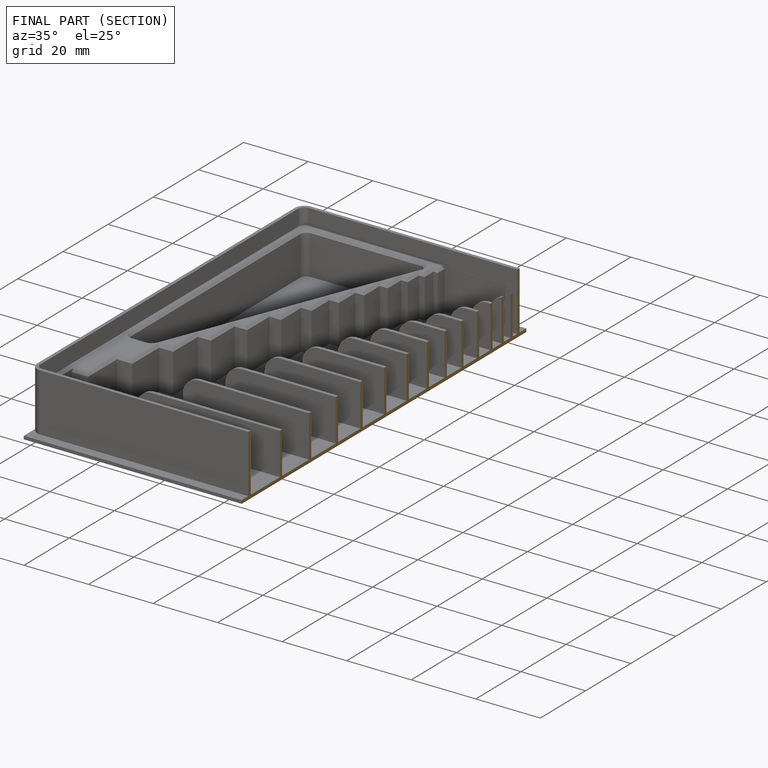
[diagram: finished part — half-section view (interior)]
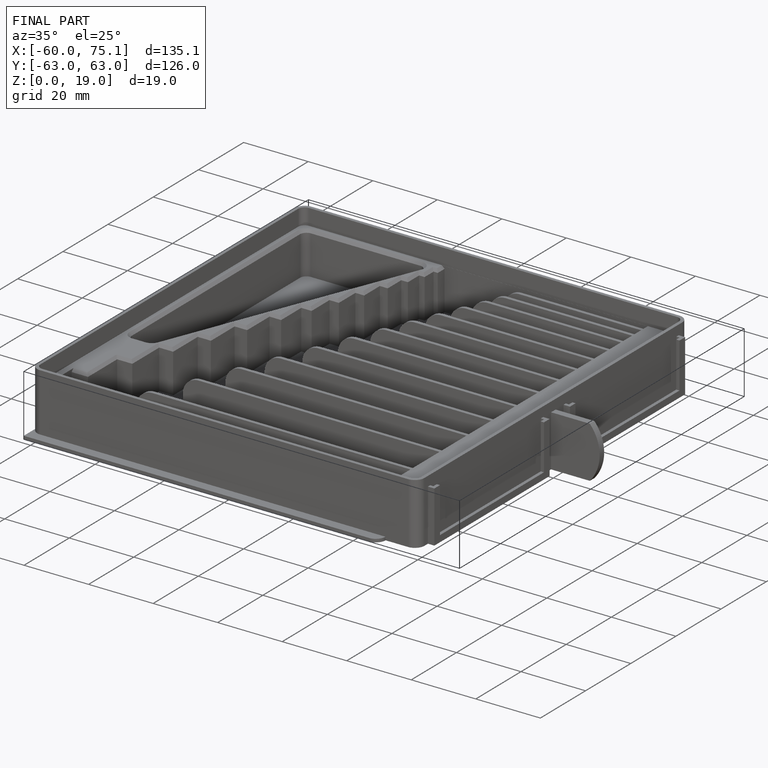
[diagram: finished part — iso view with bounding-box wireframe]
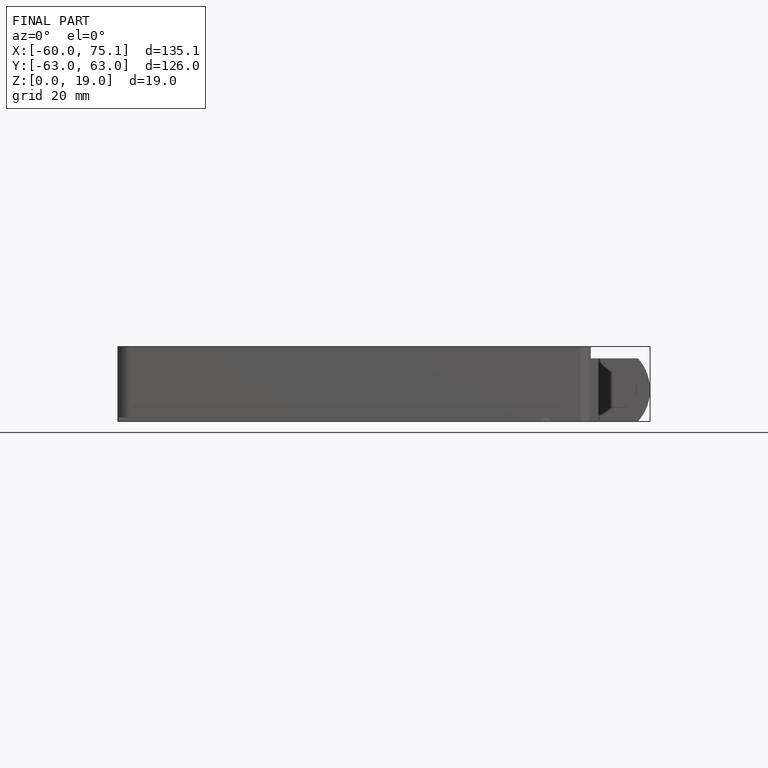
[diagram: finished part — front view with bounding-box wireframe]
